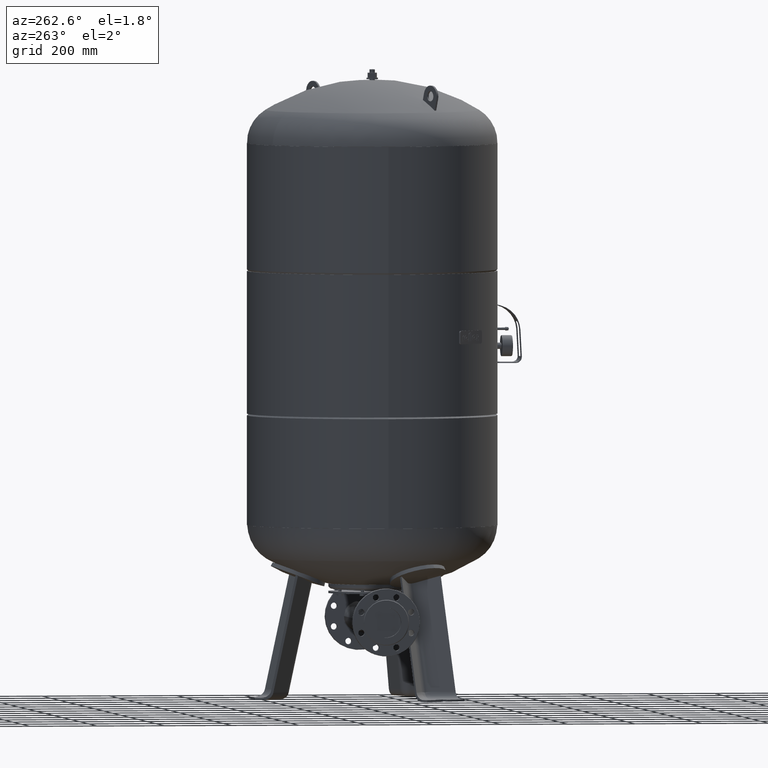
[diagram: clean part render]
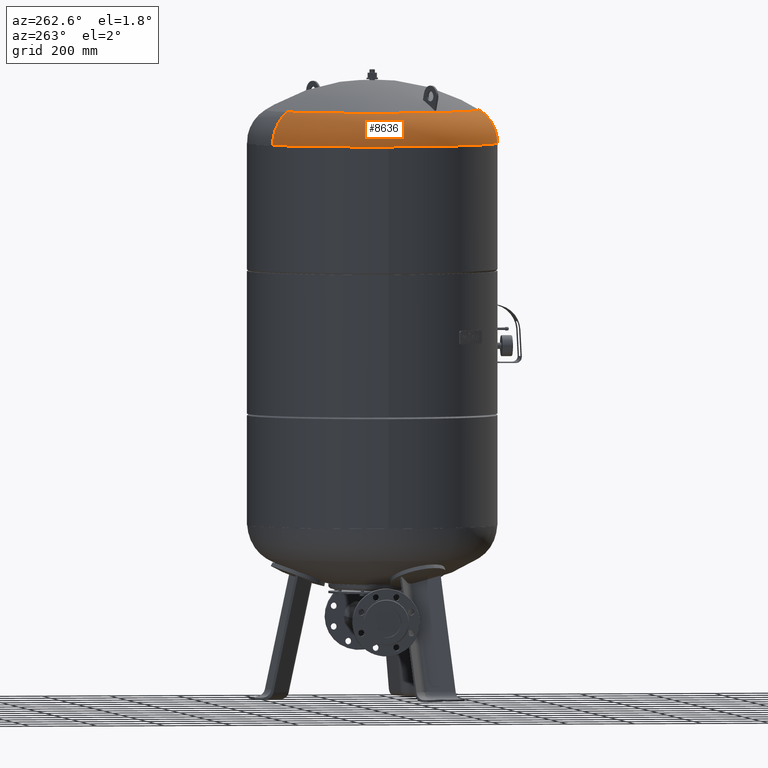
[diagram: same view with one face highlighted and labeled with its STEP entity id]
A machine part, auxiliary view. The second image highlights one B-rep face of the part: STEP entity #8636.
In plain terms, the highlighted toroidal blend (fillet) surface has major radius 254.5 mm and minor (blend) radius 115.5 mm.
Its self-contained STEP definition (entity closure, byte-faithful):
#7952=CARTESIAN_POINT('',(-320.429399400242350,-184.999999999999970,1641.206120388130600));
#7953=VERTEX_POINT('',#7952);
#7960=CARTESIAN_POINT('',(-184.999999999999970,320.429399400242350,1641.206120388130300));
#7961=VERTEX_POINT('',#7960);
#7962=CARTESIAN_POINT('',(-2.682575E-015,-4.159481E-014,1641.206120388130600));
#7963=DIRECTION('',(-1.060575E-016,-6.123234E-017,-1.000000000000000));
#7964=DIRECTION('',(0.866025403784439,0.500000000000000,-1.224647E-016));
#7965=AXIS2_PLACEMENT_3D('',#7962,#7963,#7964);
#7966=CIRCLE('',#7965,370.0);
#7967=EDGE_CURVE('',#7953,#7961,#7966,.T.);
#7984=CARTESIAN_POINT('',(185.0,-320.429399400242400,1641.206120388130600));
#7985=VERTEX_POINT('',#7984);
#7986=CARTESIAN_POINT('',(157.965517241379270,-273.604301705966460,1739.014494274920500));
#7987=VERTEX_POINT('',#7986);
#7988=CARTESIAN_POINT('',(127.249999999999970,-220.403465263139680,1641.206120388130300));
#7989=DIRECTION('',(-0.866025403784439,-0.500000000000000,1.224647E-016));
#7990=DIRECTION('',(0.500000000000000,-0.866025403784439,0.0));
#7991=AXIS2_PLACEMENT_3D('',#7988,#7989,#7990);
#7992=CIRCLE('',#7991,115.499999999999990);
#7993=EDGE_CURVE('',#7985,#7987,#7992,.T.);
#8003=CARTESIAN_POINT('',(-157.965517241379250,273.604301705966410,1739.014494274920300));
#8004=VERTEX_POINT('',#8003);
#8005=CARTESIAN_POINT('',(-127.249999999999970,220.403465263139680,1641.206120388130300));
#8006=DIRECTION('',(0.866025403784439,0.500000000000000,-1.224647E-016));
#8007=DIRECTION('',(-0.500000000000000,0.866025403784439,0.0));
#8008=AXIS2_PLACEMENT_3D('',#8005,#8006,#8007);
#8009=CIRCLE('',#8008,115.500000000000010);
#8010=EDGE_CURVE('',#7961,#8004,#8009,.T.);
#8608=CARTESIAN_POINT('',(-1.292814E-015,-2.004580E-014,1739.014494274920500));
#8609=DIRECTION('',(-1.060575E-016,-6.123234E-017,-1.0));
#8610=DIRECTION('',(0.866025403784439,0.500000000000000,-1.224647E-016));
#8611=AXIS2_PLACEMENT_3D('',#8608,#8609,#8610);
#8612=CIRCLE('',#8611,315.931034482758610);
#8613=EDGE_CURVE('',#7987,#8004,#8612,.T.);
#8618=CARTESIAN_POINT('',(-2.682575E-015,-4.159481E-014,1641.206120388130300));
#8619=DIRECTION('',(-1.420901E-017,-2.203186E-016,-1.0));
#8620=DIRECTION('',(0.500000000000000,-0.866025403784439,1.836970E-016));
#8621=AXIS2_PLACEMENT_3D('',#8618,#8619,#8620);
#8622=TOROIDAL_SURFACE('',#8621,254.500000000000030,115.500000000000000);
#8623=ORIENTED_EDGE('',*,*,#7993,.T.);
#8624=ORIENTED_EDGE('',*,*,#8613,.T.);
#8625=ORIENTED_EDGE('',*,*,#8010,.F.);
#8626=ORIENTED_EDGE('',*,*,#7967,.F.);
#8627=CARTESIAN_POINT('',(-2.682575E-015,-4.159481E-014,1641.206120388130600));
#8628=DIRECTION('',(-1.060575E-016,-6.123234E-017,-1.000000000000000));
#8629=DIRECTION('',(0.866025403784439,0.500000000000000,-1.224647E-016));
#8630=AXIS2_PLACEMENT_3D('',#8627,#8628,#8629);
#8631=CIRCLE('',#8630,370.0);
#8632=EDGE_CURVE('',#7985,#7953,#8631,.T.);
#8633=ORIENTED_EDGE('',*,*,#8632,.F.);
#8634=EDGE_LOOP('',(#8623,#8624,#8625,#8626,#8633));
#8635=FACE_OUTER_BOUND('',#8634,.T.);
#8636=ADVANCED_FACE('',(#8635),#8622,.T.);